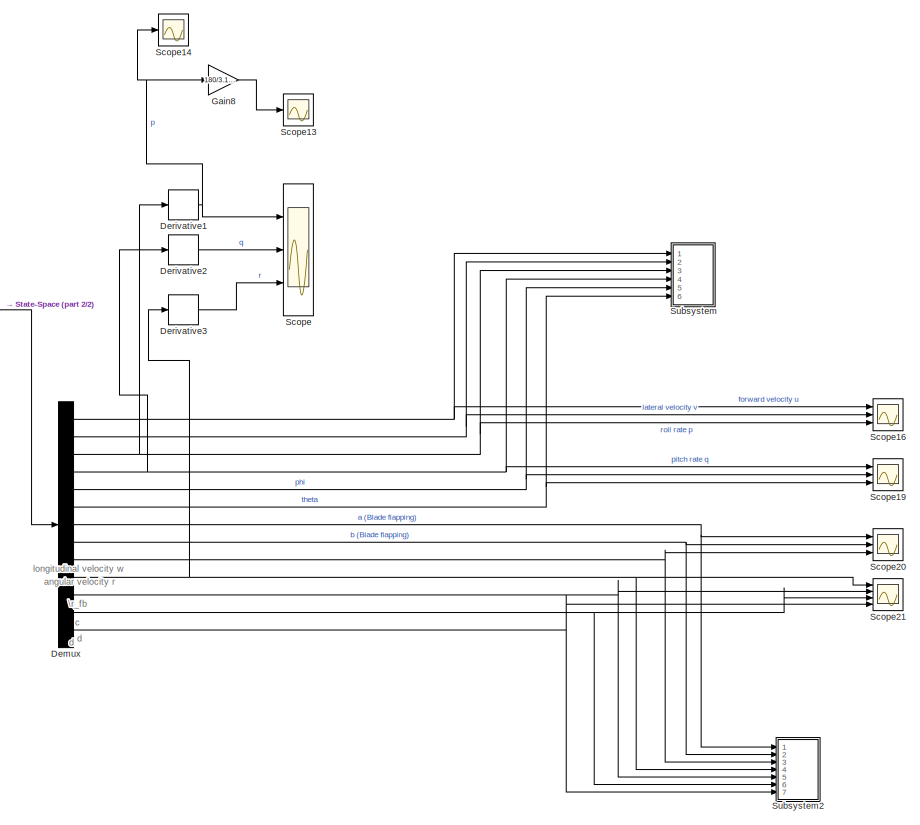
[diagram: root canvas - part 1/2, right side, full height]
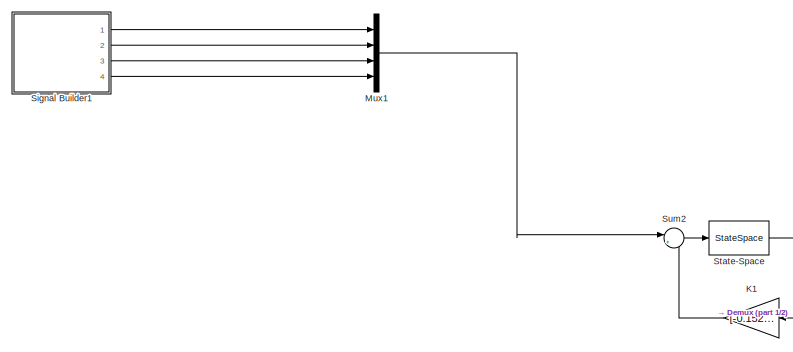
[diagram: root canvas - part 2/2, top left region]
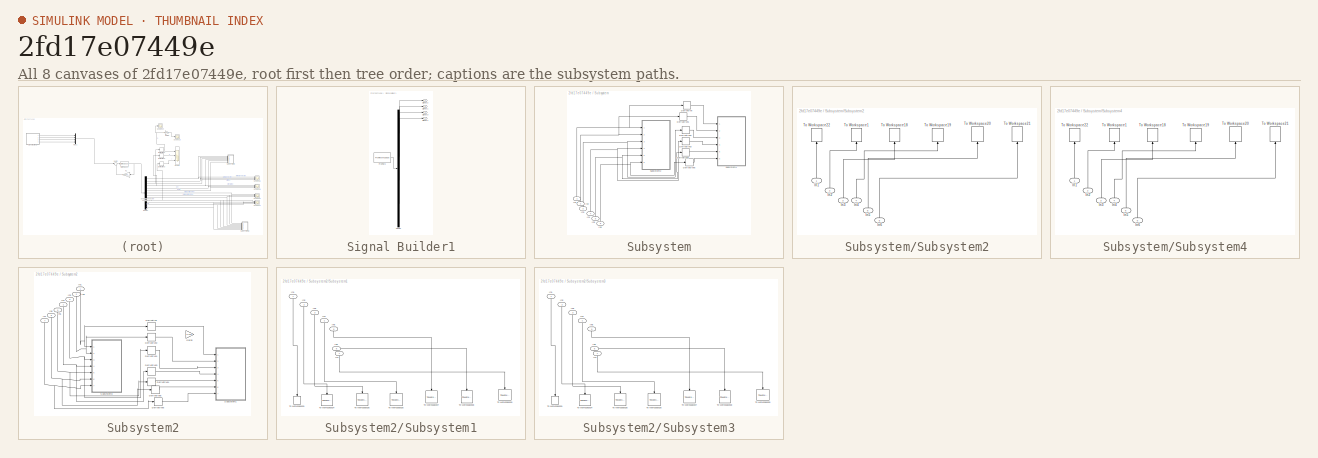
[diagram: thumbnail index - all 8 canvases of the model, root first then tree order]
MODEL slx_2fd17e07449e
KIND model
BLOCK [Demux] Demux
  Outputs = 13
  Ports = [1, 13]
BLOCK [Derivative] Derivative1
BLOCK [Derivative] Derivative2
BLOCK [Derivative] Derivative3
BLOCK [Gain] Gain8
  Gain = 180/3.142
  OutDataTypeStr = Inherit: Inherit via internal rule
  ParamDataTypeStr = Inherit: Inherit via internal rule
  SaturateOnIntegerOverflow = off
BLOCK [Gain] K1
  Gain = [-0.15200	0.93400	1.9290	0.18900	6.5360	0.77700	10.887	66.050	-0.0080	0.074	-0.12500	-0.35200	4.1590;0.97400	0.14	0.12200	-2.5160	0.74600	-7.7990	-64.275	13.834	-0.0020	-0.051	0.17100	-3.9580	0.29400;0.011	-0.034	-0.13400	-0.013	-0.21300	-0.052	-0.024	-1.1640	-0.023	0.85400	-0.53500	0.010	-0.0010;-0.0020	-0.0070	-0.018	0.0040	-0.047	0.014	0.28400	2.2140	-0.98600 -0.050	0.0070	0.0030	0.0010]
  Multiplication = Matrix(K*u)
BLOCK [Mux] Mux1
  DisplayOption = bar
  Ports = [4, 1]
BLOCK [Scope] Scope
  DataFormat = StructureWithTime
  Floating = off
  LimitDataPoints = off
  MaxDataPoints = 5000000
  NumInputPorts = 3
  Ports = [3]
  SampleInput = on
  ShowLegends = off
  TimeRange = 10
  YMax = 3e-05~2e-06~0.12
  YMin = -3e-05~-2e-06~-0.02
BLOCK [Scope] Scope13
  Floating = off
  LimitDataPoints = off
  MaxDataPoints = 50000
  NumInputPorts = 1
  Ports = [1]
  SampleInput = on
  SaveName = ScopeData13
  ShowLegends = off
BLOCK [Scope] Scope14
  Floating = off
  LimitDataPoints = off
  MaxDataPoints = 50000
  NumInputPorts = 1
  Ports = [1]
  SampleInput = on
  SaveName = ScopeData14
  ShowLegends = off
BLOCK [Scope] Scope16
  Floating = off
  LimitDataPoints = off
  MaxDataPoints = 50000
  NumInputPorts = 3
  Ports = [3]
  SampleInput = on
  SaveName = ScopeData16
  ShowLegends = off
  YMax = 5~5~5
  YMin = -5~-5~-5
  ZoomMode = yonly
BLOCK [Scope] Scope19
  Floating = off
  LimitDataPoints = off
  MaxDataPoints = 50000
  NumInputPorts = 3
  Ports = [3]
  SampleInput = on
  SaveName = ScopeData19
  ShowLegends = off
  YMax = 5~5~5
  YMin = -5~-5~-5
BLOCK [Scope] Scope20
  Floating = off
  LimitDataPoints = off
  MaxDataPoints = 50000
  NumInputPorts = 3
  Ports = [3]
  SampleInput = on
  SaveName = ScopeData20
  ShowLegends = off
  YMax = 5~5~5
  YMin = -5~-5~-5
BLOCK [Scope] Scope21
  Floating = off
  LimitDataPoints = off
  MaxDataPoints = 50000
  NumInputPorts = 4
  Ports = [4]
  SampleInput = on
  SaveName = ScopeData21
  ShowLegends = off
  YMax = 5~5~5~5
  YMin = -5~-5~-5~-5
BLOCK [SubSystem] Signal Builder1
  ClipboardFcn = sigbuilder_block('clipboard');
  CloseFcn = sigbuilder_block('close');
  ContinueFcn = sigbuilder_block('continue');
  CopyFcn = sigbuilder_block('copy');
  DeleteFcn = sigbuilder_block('delete');
  LoadFcn = sigbuilder_block('load');
  MaskHideContents = on
  ModelCloseFcn = sigbuilder_block('modelClose');
  NameChangeFcn = sigbuilder_block('namechange');
  OpenFcn = sigbuilder_block('open',[6 30.75 1012.5 481.5 ]);
  PauseFcn = sigbuilder_block('pause');
  Ports = [0, 4]
  PreSaveFcn = sigbuilder_block('preSave');
  RequestExecContextInheritance = off
  StartFcn = sigbuilder_block('start');
  StopFcn = sigbuilder_block('stop');
  Tag = STV Subsys
BLOCK [Demux] Signal Builder1/Demux
  Ports = [1, 4]
  Tag = STV Demux
BLOCK [FromWorkspace] Signal Builder1/FromWs
  SampleTime = 0
  Tag = STV FromWs
  VariableName = tuvar
  ZeroCross = on
BLOCK [Outport] Signal Builder1/Signal 1
  IconDisplay = Port number
  Port = 2
  Tag = STV Outport
BLOCK [Outport] Signal Builder1/Signal 2
  IconDisplay = Port number
  Tag = STV Outport
BLOCK [Outport] Signal Builder1/Signal 3
  IconDisplay = Port number
  Port = 3
  Tag = STV Outport
BLOCK [Outport] Signal Builder1/Signal 4
  IconDisplay = Port number
  Port = 4
  Tag = STV Outport
BLOCK [StateSpace] State-Space
  A = A
  B = B
  C = C
  D = zeros(8,2)
  Ports = [1, 1]
  X0 = 0
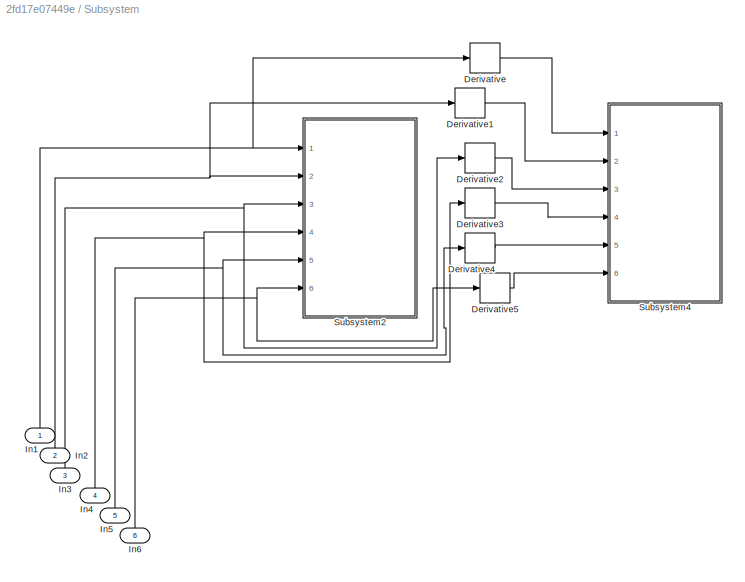
BLOCK [SubSystem] Subsystem
  Ports = [6]
  RequestExecContextInheritance = off
BLOCK [Derivative] Subsystem/Derivative
BLOCK [Derivative] Subsystem/Derivative1
BLOCK [Derivative] Subsystem/Derivative2
BLOCK [Derivative] Subsystem/Derivative3
BLOCK [Derivative] Subsystem/Derivative4
BLOCK [Derivative] Subsystem/Derivative5
BLOCK [Inport] Subsystem/In1
  IconDisplay = Port number
BLOCK [Inport] Subsystem/In2
  IconDisplay = Port number
  Port = 2
BLOCK [Inport] Subsystem/In3
  IconDisplay = Port number
  Port = 3
BLOCK [Inport] Subsystem/In4
  IconDisplay = Port number
  Port = 4
BLOCK [Inport] Subsystem/In5
  IconDisplay = Port number
  Port = 5
BLOCK [Inport] Subsystem/In6
  IconDisplay = Port number
  Port = 6
BLOCK [SubSystem] Subsystem/Subsystem2
  Ports = [6]
  RequestExecContextInheritance = off
BLOCK [Inport] Subsystem/Subsystem2/In1
  IconDisplay = Port number
BLOCK [Inport] Subsystem/Subsystem2/In2
  IconDisplay = Port number
  Port = 2
BLOCK [Inport] Subsystem/Subsystem2/In3
  IconDisplay = Port number
  Port = 3
BLOCK [Inport] Subsystem/Subsystem2/In4
  IconDisplay = Port number
  Port = 4
BLOCK [Inport] Subsystem/Subsystem2/In5
  IconDisplay = Port number
  Port = 5
BLOCK [Inport] Subsystem/Subsystem2/In6
  IconDisplay = Port number
  Port = 6
BLOCK [ToWorkspace] Subsystem/Subsystem2/To Workspace1
  FixptAsFi = on
  MaxDataPoints = inf
  Ports = [1]
  SampleTime = 0.01
  Save2DSignal = 2-D array (concatenate along first dimension)
  VariableName = vd
BLOCK [ToWorkspace] Subsystem/Subsystem2/To Workspace18
  FixptAsFi = on
  MaxDataPoints = inf
  Ports = [1]
  SampleTime = 0.01
  Save2DSignal = 2-D array (concatenate along first dimension)
  VariableName = pd
BLOCK [ToWorkspace] Subsystem/Subsystem2/To Workspace19
  FixptAsFi = on
  MaxDataPoints = inf
  Ports = [1]
  SampleTime = 0.01
  Save2DSignal = 2-D array (concatenate along first dimension)
  VariableName = qd
BLOCK [ToWorkspace] Subsystem/Subsystem2/To Workspace20
  FixptAsFi = on
  MaxDataPoints = inf
  Ports = [1]
  SampleTime = 0.01
  Save2DSignal = 2-D array (concatenate along first dimension)
  VariableName = phid
BLOCK [ToWorkspace] Subsystem/Subsystem2/To Workspace21
  FixptAsFi = on
  MaxDataPoints = inf
  Ports = [1]
  SampleTime = 0.01
  Save2DSignal = 3-D array (concatenate along third dimension)
  VariableName = thetad
BLOCK [ToWorkspace] Subsystem/Subsystem2/To Workspace22
  FixptAsFi = on
  MaxDataPoints = inf
  Ports = [1]
  SampleTime = 0.01
  Save2DSignal = 2-D array (concatenate along first dimension)
  VariableName = ud
BLOCK [SubSystem] Subsystem/Subsystem4
  Ports = [6]
  RequestExecContextInheritance = off
BLOCK [Inport] Subsystem/Subsystem4/In1
  IconDisplay = Port number
BLOCK [Inport] Subsystem/Subsystem4/In2
  IconDisplay = Port number
  Port = 2
BLOCK [Inport] Subsystem/Subsystem4/In3
  IconDisplay = Port number
  Port = 3
BLOCK [Inport] Subsystem/Subsystem4/In4
  IconDisplay = Port number
  Port = 4
BLOCK [Inport] Subsystem/Subsystem4/In5
  IconDisplay = Port number
  Port = 5
BLOCK [Inport] Subsystem/Subsystem4/In6
  IconDisplay = Port number
  Port = 6
BLOCK [ToWorkspace] Subsystem/Subsystem4/To Workspace1
  FixptAsFi = on
  MaxDataPoints = inf
  Ports = [1]
  SampleTime = 0.01
  Save2DSignal = 2-D array (concatenate along first dimension)
  VariableName = v
BLOCK [ToWorkspace] Subsystem/Subsystem4/To Workspace18
  FixptAsFi = on
  MaxDataPoints = inf
  Ports = [1]
  SampleTime = 0.01
  Save2DSignal = 2-D array (concatenate along first dimension)
  VariableName = p
BLOCK [ToWorkspace] Subsystem/Subsystem4/To Workspace19
  FixptAsFi = on
  MaxDataPoints = inf
  Ports = [1]
  SampleTime = 0.01
  Save2DSignal = 2-D array (concatenate along first dimension)
  VariableName = q
BLOCK [ToWorkspace] Subsystem/Subsystem4/To Workspace20
  FixptAsFi = on
  MaxDataPoints = inf
  Ports = [1]
  SampleTime = 0.01
  Save2DSignal = 2-D array (concatenate along first dimension)
  VariableName = phi
BLOCK [ToWorkspace] Subsystem/Subsystem4/To Workspace21
  FixptAsFi = on
  MaxDataPoints = inf
  Ports = [1]
  SampleTime = 0.01
  Save2DSignal = 3-D array (concatenate along third dimension)
  VariableName = theta
BLOCK [ToWorkspace] Subsystem/Subsystem4/To Workspace22
  FixptAsFi = on
  MaxDataPoints = inf
  Ports = [1]
  SampleTime = 0.01
  Save2DSignal = 2-D array (concatenate along first dimension)
  VariableName = u
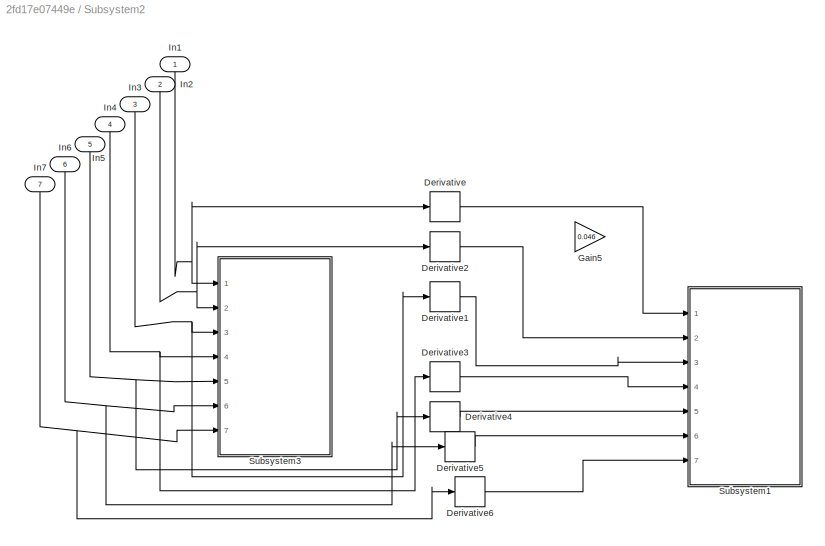
BLOCK [SubSystem] Subsystem2
  Ports = [7]
  RequestExecContextInheritance = off
BLOCK [Derivative] Subsystem2/Derivative
BLOCK [Derivative] Subsystem2/Derivative1
BLOCK [Derivative] Subsystem2/Derivative2
BLOCK [Derivative] Subsystem2/Derivative3
BLOCK [Derivative] Subsystem2/Derivative4
BLOCK [Derivative] Subsystem2/Derivative5
BLOCK [Derivative] Subsystem2/Derivative6
BLOCK [Gain] Subsystem2/Gain5
  Gain = 0.046
  OutDataTypeStr = Inherit: Inherit via internal rule
  ParamDataTypeStr = Inherit: Inherit via internal rule
  SaturateOnIntegerOverflow = off
BLOCK [Inport] Subsystem2/In1
  IconDisplay = Port number
BLOCK [Inport] Subsystem2/In2
  IconDisplay = Port number
  Port = 2
BLOCK [Inport] Subsystem2/In3
  IconDisplay = Port number
  Port = 3
BLOCK [Inport] Subsystem2/In4
  IconDisplay = Port number
  Port = 4
BLOCK [Inport] Subsystem2/In5
  IconDisplay = Port number
  Port = 5
BLOCK [Inport] Subsystem2/In6
  IconDisplay = Port number
  Port = 6
BLOCK [Inport] Subsystem2/In7
  IconDisplay = Port number
  Port = 7
BLOCK [SubSystem] Subsystem2/Subsystem1
  Ports = [7]
  RequestExecContextInheritance = off
BLOCK [Inport] Subsystem2/Subsystem1/In1
  IconDisplay = Port number
BLOCK [Inport] Subsystem2/Subsystem1/In2
  IconDisplay = Port number
  Port = 2
BLOCK [Inport] Subsystem2/Subsystem1/In3
  IconDisplay = Port number
  Port = 3
BLOCK [Inport] Subsystem2/Subsystem1/In4
  IconDisplay = Port number
  Port = 4
BLOCK [Inport] Subsystem2/Subsystem1/In5
  IconDisplay = Port number
  Port = 5
BLOCK [Inport] Subsystem2/Subsystem1/In6
  IconDisplay = Port number
  Port = 6
BLOCK [Inport] Subsystem2/Subsystem1/In7
  IconDisplay = Port number
  Port = 7
BLOCK [ToWorkspace] Subsystem2/Subsystem1/To Workspace24
  FixptAsFi = on
  MaxDataPoints = inf
  Ports = [1]
  SampleTime = 0.01
  Save2DSignal = 2-D array (concatenate along first dimension)
  VariableName = b
BLOCK [ToWorkspace] Subsystem2/Subsystem1/To Workspace25
  FixptAsFi = on
  MaxDataPoints = inf
  Ports = [1]
  SampleTime = 0.01
  Save2DSignal = 2-D array (concatenate along first dimension)
  VariableName = w
BLOCK [ToWorkspace] Subsystem2/Subsystem1/To Workspace26
  FixptAsFi = on
  MaxDataPoints = inf
  Ports = [1]
  SampleTime = 0.01
  Save2DSignal = 2-D array (concatenate along first dimension)
  VariableName = r
BLOCK [ToWorkspace] Subsystem2/Subsystem1/To Workspace27
  FixptAsFi = on
  MaxDataPoints = inf
  Ports = [1]
  SampleTime = 0.01
  Save2DSignal = 2-D array (concatenate along first dimension)
  VariableName = rfb
BLOCK [ToWorkspace] Subsystem2/Subsystem1/To Workspace28
  FixptAsFi = on
  MaxDataPoints = inf
  Ports = [1]
  SampleTime = 0.01
  Save2DSignal = 2-D array (concatenate along first dimension)
  VariableName = c
BLOCK [ToWorkspace] Subsystem2/Subsystem1/To Workspace29
  FixptAsFi = on
  MaxDataPoints = inf
  Ports = [1]
  SampleTime = 0.01
  Save2DSignal = 2-D array (concatenate along first dimension)
  VariableName = a
BLOCK [ToWorkspace] Subsystem2/Subsystem1/To Workspace30
  FixptAsFi = on
  MaxDataPoints = inf
  Ports = [1]
  SampleTime = 0.01
  Save2DSignal = 2-D array (concatenate along first dimension)
  VariableName = d
BLOCK [SubSystem] Subsystem2/Subsystem3
  Ports = [7]
  RequestExecContextInheritance = off
BLOCK [Inport] Subsystem2/Subsystem3/In1
  IconDisplay = Port number
BLOCK [Inport] Subsystem2/Subsystem3/In2
  IconDisplay = Port number
  Port = 2
BLOCK [Inport] Subsystem2/Subsystem3/In3
  IconDisplay = Port number
  Port = 3
BLOCK [Inport] Subsystem2/Subsystem3/In4
  IconDisplay = Port number
  Port = 4
BLOCK [Inport] Subsystem2/Subsystem3/In5
  IconDisplay = Port number
  Port = 5
BLOCK [Inport] Subsystem2/Subsystem3/In6
  IconDisplay = Port number
  Port = 6
BLOCK [Inport] Subsystem2/Subsystem3/In7
  IconDisplay = Port number
  Port = 7
BLOCK [ToWorkspace] Subsystem2/Subsystem3/To Workspace24
  FixptAsFi = on
  MaxDataPoints = inf
  Ports = [1]
  SampleTime = 0.01
  Save2DSignal = 2-D array (concatenate along first dimension)
  VariableName = bd
BLOCK [ToWorkspace] Subsystem2/Subsystem3/To Workspace25
  FixptAsFi = on
  MaxDataPoints = inf
  Ports = [1]
  SampleTime = 0.01
  Save2DSignal = 2-D array (concatenate along first dimension)
  VariableName = wd
BLOCK [ToWorkspace] Subsystem2/Subsystem3/To Workspace26
  FixptAsFi = on
  MaxDataPoints = inf
  Ports = [1]
  SampleTime = 0.01
  Save2DSignal = 2-D array (concatenate along first dimension)
  VariableName = rd
BLOCK [ToWorkspace] Subsystem2/Subsystem3/To Workspace27
  FixptAsFi = on
  MaxDataPoints = inf
  Ports = [1]
  SampleTime = 0.01
  Save2DSignal = 2-D array (concatenate along first dimension)
  VariableName = rfbd
BLOCK [ToWorkspace] Subsystem2/Subsystem3/To Workspace28
  FixptAsFi = on
  MaxDataPoints = inf
  Ports = [1]
  SampleTime = 0.01
  Save2DSignal = 2-D array (concatenate along first dimension)
  VariableName = cd
BLOCK [ToWorkspace] Subsystem2/Subsystem3/To Workspace29
  FixptAsFi = on
  MaxDataPoints = inf
  Ports = [1]
  SampleTime = 0.01
  Save2DSignal = 2-D array (concatenate along first dimension)
  VariableName = ad
BLOCK [ToWorkspace] Subsystem2/Subsystem3/To Workspace30
  FixptAsFi = on
  MaxDataPoints = inf
  Ports = [1]
  SampleTime = 0.01
  Save2DSignal = 2-D array (concatenate along first dimension)
  VariableName = dd
BLOCK [Sum] Sum2
  IconShape = round
  Inputs = |+-
  Ports = [2, 1]
ANNOTATION (root): \r_fb
ANNOTATION (root): longitudinal velocity w
ANNOTATION (root): angular velocity r
ANNOTATION (root): c
ANNOTATION (root): d
NET Demux:1 -> Scope16:1, Subsystem:1
NET Demux:10 -> Derivative3:1, Scope21:1, Subsystem2:4
NET Demux:11 -> Scope21:2, Subsystem2:5
NET Demux:12 -> Scope21:3, Subsystem2:6
NET Demux:13 -> Scope21:4, Subsystem2:7
NET Demux:2 -> Scope16:2, Subsystem:2
NET Demux:3 -> Derivative1:1, Scope16:3, Subsystem:3
NET Demux:4 -> Derivative2:1, Scope19:1, Subsystem:4
NET Demux:5 -> Scope19:2, Subsystem:5
NET Demux:6 -> Scope19:3, Subsystem:6
NET Demux:7 -> Scope20:1, Subsystem2:1
NET Demux:8 -> Scope20:2, Subsystem2:2
NET Demux:9 -> Scope20:3, Subsystem2:3
NET Derivative1:1 -> Gain8:1, Scope14:1, Scope:1
LINE Derivative2:1 -> Scope:2
LINE Derivative3:1 -> Scope:3
LINE Gain8:1 -> Scope13:1
LINE K1:1 -> Sum2:2
LINE Mux1:1 -> Sum2:1
LINE Signal Builder1:1 -> Mux1:1
LINE Signal Builder1:2 -> Mux1:2
LINE Signal Builder1:3 -> Mux1:3
LINE Signal Builder1:4 -> Mux1:4
NET State-Space:1 -> Demux:1, K1:1
LINE Subsystem/Derivative1:1 -> Subsystem/Subsystem4:2
LINE Subsystem/Derivative2:1 -> Subsystem/Subsystem4:3
LINE Subsystem/Derivative3:1 -> Subsystem/Subsystem4:4
LINE Subsystem/Derivative4:1 -> Subsystem/Subsystem4:5
LINE Subsystem/Derivative5:1 -> Subsystem/Subsystem4:6
LINE Subsystem/Derivative:1 -> Subsystem/Subsystem4:1
NET Subsystem/In1:1 -> Subsystem/Derivative:1, Subsystem/Subsystem2:1
NET Subsystem/In2:1 -> Subsystem/Derivative1:1, Subsystem/Subsystem2:2
NET Subsystem/In3:1 -> Subsystem/Derivative2:1, Subsystem/Subsystem2:3
NET Subsystem/In4:1 -> Subsystem/Derivative3:1, Subsystem/Subsystem2:4
NET Subsystem/In5:1 -> Subsystem/Derivative4:1, Subsystem/Subsystem2:5
NET Subsystem/In6:1 -> Subsystem/Derivative5:1, Subsystem/Subsystem2:6
LINE Subsystem/Subsystem2/In1:1 -> Subsystem/Subsystem2/To Workspace22:1
LINE Subsystem/Subsystem2/In2:1 -> Subsystem/Subsystem2/To Workspace1:1
LINE Subsystem/Subsystem2/In3:1 -> Subsystem/Subsystem2/To Workspace18:1
LINE Subsystem/Subsystem2/In4:1 -> Subsystem/Subsystem2/To Workspace19:1
LINE Subsystem/Subsystem2/In5:1 -> Subsystem/Subsystem2/To Workspace20:1
LINE Subsystem/Subsystem2/In6:1 -> Subsystem/Subsystem2/To Workspace21:1
LINE Subsystem/Subsystem4/In1:1 -> Subsystem/Subsystem4/To Workspace22:1
LINE Subsystem/Subsystem4/In2:1 -> Subsystem/Subsystem4/To Workspace1:1
LINE Subsystem/Subsystem4/In3:1 -> Subsystem/Subsystem4/To Workspace18:1
LINE Subsystem/Subsystem4/In4:1 -> Subsystem/Subsystem4/To Workspace19:1
LINE Subsystem/Subsystem4/In5:1 -> Subsystem/Subsystem4/To Workspace20:1
LINE Subsystem/Subsystem4/In6:1 -> Subsystem/Subsystem4/To Workspace21:1
LINE Subsystem2/Derivative1:1 -> Subsystem2/Subsystem1:3
LINE Subsystem2/Derivative2:1 -> Subsystem2/Subsystem1:2
LINE Subsystem2/Derivative3:1 -> Subsystem2/Subsystem1:4
LINE Subsystem2/Derivative4:1 -> Subsystem2/Subsystem1:5
LINE Subsystem2/Derivative5:1 -> Subsystem2/Subsystem1:6
LINE Subsystem2/Derivative6:1 -> Subsystem2/Subsystem1:7
LINE Subsystem2/Derivative:1 -> Subsystem2/Subsystem1:1
NET Subsystem2/In1:1 -> Subsystem2/Derivative:1, Subsystem2/Subsystem3:1
NET Subsystem2/In2:1 -> Subsystem2/Derivative2:1, Subsystem2/Subsystem3:2
NET Subsystem2/In3:1 -> Subsystem2/Derivative1:1, Subsystem2/Subsystem3:3
NET Subsystem2/In4:1 -> Subsystem2/Derivative3:1, Subsystem2/Subsystem3:4
NET Subsystem2/In5:1 -> Subsystem2/Derivative4:1, Subsystem2/Subsystem3:5
NET Subsystem2/In6:1 -> Subsystem2/Derivative5:1, Subsystem2/Subsystem3:6
NET Subsystem2/In7:1 -> Subsystem2/Derivative6:1, Subsystem2/Subsystem3:7
LINE Subsystem2/Subsystem1/In1:1 -> Subsystem2/Subsystem1/To Workspace29:1
LINE Subsystem2/Subsystem1/In2:1 -> Subsystem2/Subsystem1/To Workspace24:1
LINE Subsystem2/Subsystem1/In3:1 -> Subsystem2/Subsystem1/To Workspace25:1
LINE Subsystem2/Subsystem1/In4:1 -> Subsystem2/Subsystem1/To Workspace26:1
LINE Subsystem2/Subsystem1/In5:1 -> Subsystem2/Subsystem1/To Workspace27:1
LINE Subsystem2/Subsystem1/In6:1 -> Subsystem2/Subsystem1/To Workspace28:1
LINE Subsystem2/Subsystem1/In7:1 -> Subsystem2/Subsystem1/To Workspace30:1
LINE Subsystem2/Subsystem3/In1:1 -> Subsystem2/Subsystem3/To Workspace29:1
LINE Subsystem2/Subsystem3/In2:1 -> Subsystem2/Subsystem3/To Workspace24:1
LINE Subsystem2/Subsystem3/In3:1 -> Subsystem2/Subsystem3/To Workspace25:1
LINE Subsystem2/Subsystem3/In4:1 -> Subsystem2/Subsystem3/To Workspace26:1
LINE Subsystem2/Subsystem3/In5:1 -> Subsystem2/Subsystem3/To Workspace27:1
LINE Subsystem2/Subsystem3/In6:1 -> Subsystem2/Subsystem3/To Workspace28:1
LINE Subsystem2/Subsystem3/In7:1 -> Subsystem2/Subsystem3/To Workspace30:1
LINE Sum2:1 -> State-Space:1
note: NET lines group one-source signal fan-out (src -> all destinations, sorted); 1:1 wires keep LINE
